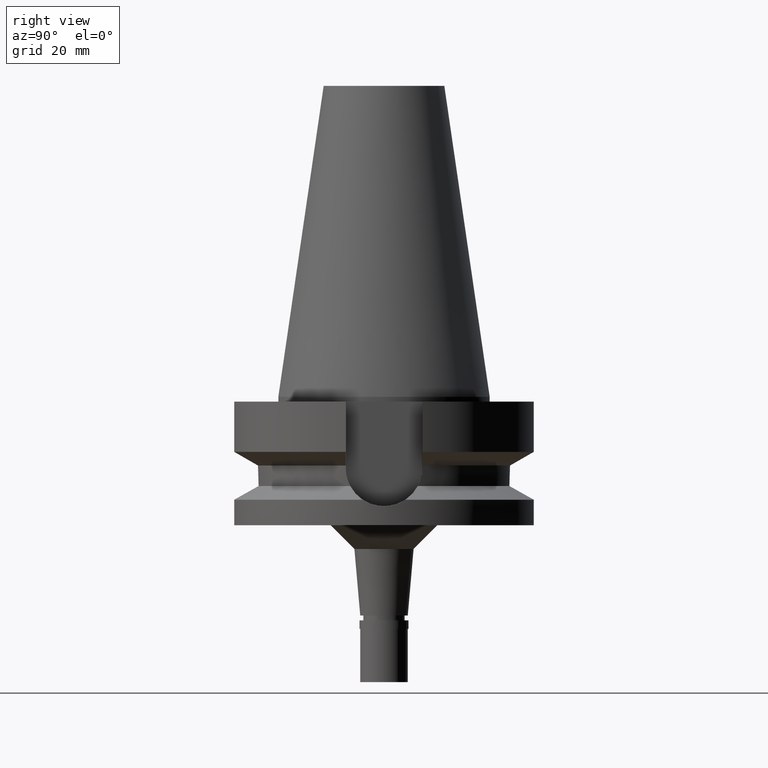
[diagram: clean part render]
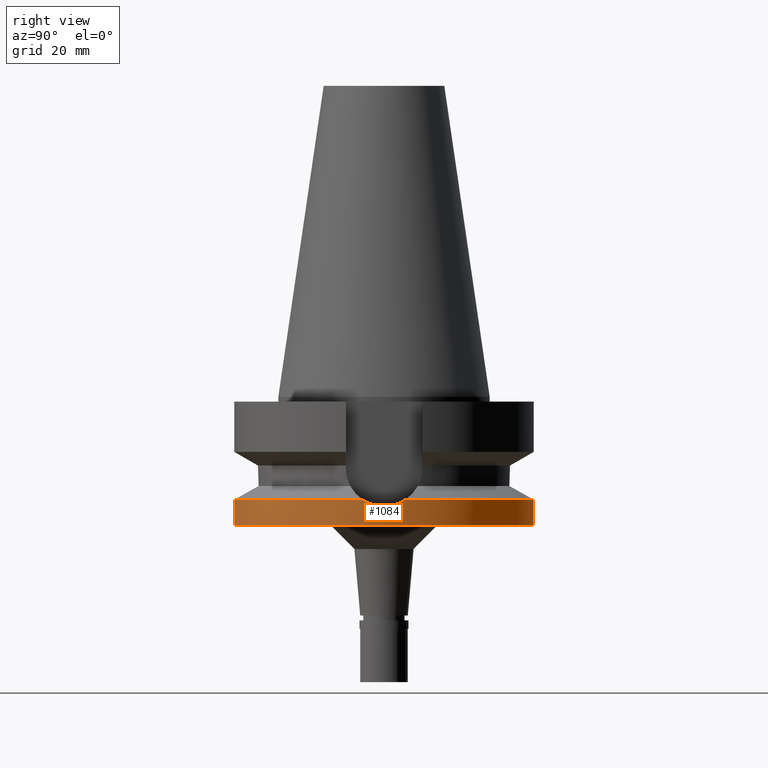
[diagram: same view with one face highlighted and labeled with its STEP entity id]
A machine part, right view. The second image highlights one B-rep face of the part: STEP entity #1084.
In plain terms, the highlighted cylindrical surface (partial cylindrical patch) has radius 31.5 mm, axis along (0, 0, -1).
Its self-contained STEP definition (entity closure, byte-faithful):
#12 = EDGE_CURVE ( 'NONE', #822, #389, #2730, .T. ) ;
#103 = CARTESIAN_POINT ( 'NONE',  ( 31.41700835831544225, 2.283543664145136098, -22.66933216879627722 ) ) ;
#111 = DIRECTION ( 'NONE',  ( 0.0000000000000000000, 0.0000000000000000000, -1.000000000000000000 ) ) ;
#151 = CARTESIAN_POINT ( 'NONE',  ( 0.0000000000000000000, 31.50000000000000000, -21.63449434733000132 ) ) ;
#158 = CARTESIAN_POINT ( 'NONE',  ( 31.44589798759551869, 1.844932280710275485, -22.78637270911190882 ) ) ;
#302 = DIRECTION ( 'NONE',  ( 0.0000000000000000000, -1.000000000000000000, 0.0000000000000000000 ) ) ;
#336 = CARTESIAN_POINT ( 'NONE',  ( 31.40784684085313927, -2.406367806362057937, -22.63197621435943674 ) ) ;
#341 = CARTESIAN_POINT ( 'NONE',  ( 31.28513683615316410, 3.747769718700968866, -22.12956222723138211 ) ) ;
#374 = LINE ( 'NONE', #581, #2637 ) ;
#376 = VERTEX_POINT ( 'NONE', #532 ) ;
#386 = CARTESIAN_POINT ( 'NONE',  ( 31.33673721240795018, -3.204096009920455845, -22.33755624058726852 ) ) ;
#389 = VERTEX_POINT ( 'NONE', #1648 ) ;
#402 = CARTESIAN_POINT ( 'NONE',  ( 31.50000000000000000, 0.0000000000000000000, -23.00000000000000000 ) ) ;
#421 = CARTESIAN_POINT ( 'NONE',  ( 31.50000000000000000, 0.0000000000000000000, -23.00000000000000000 ) ) ;
#489 = VERTEX_POINT ( 'NONE', #2620 ) ;
#532 = CARTESIAN_POINT ( 'NONE',  ( 0.0000000000000000000, -31.50000000000000000, -21.63449434733000132 ) ) ;
#577 = CARTESIAN_POINT ( 'NONE',  ( 31.40207367289821150, -2.480881812443565426, -22.60840945407686320 ) ) ;
#581 = CARTESIAN_POINT ( 'NONE',  ( 0.0000000000000000000, -31.50000000000000000, -21.63449434733000132 ) ) ;
#584 = DIRECTION ( 'NONE',  ( 0.0000000000000000000, 0.0000000000000000000, -1.000000000000000000 ) ) ;
#591 = CARTESIAN_POINT ( 'NONE',  ( 0.0000000000000000000, 0.0000000000000000000, -21.63449434733000132 ) ) ;
#593 = CARTESIAN_POINT ( 'NONE',  ( 31.27812972762344401, -3.746556030059596143, -22.08615384560453876 ) ) ;
#605 = EDGE_CURVE ( 'NONE', #845, #389, #944, .T. ) ;
#626 = CARTESIAN_POINT ( 'NONE',  ( 31.43710641057977639, 1.991379779859996590, -22.75094280094347710 ) ) ;
#631 = EDGE_CURVE ( 'NONE', #845, #684, #979, .T. ) ;
#656 = ORIENTED_EDGE ( 'NONE', *, *, #631, .F. ) ;
#684 = VERTEX_POINT ( 'NONE', #1222 ) ;
#780 = DIRECTION ( 'NONE',  ( 0.0000000000000000000, 1.099151708819000049E-13, -1.000000000000000000 ) ) ;
#789 = CARTESIAN_POINT ( 'NONE',  ( 31.41422043550664256, 2.321593114301752081, -22.65797165830636928 ) ) ;
#795 = AXIS2_PLACEMENT_3D ( 'NONE', #2369, #1941, #302 ) ;
#807 = CARTESIAN_POINT ( 'NONE',  ( 31.41523313603343581, 2.307851765051336823, -22.66209965112095404 ) ) ;
#812 = AXIS2_PLACEMENT_3D ( 'NONE', #591, #111, #2167 ) ;
#818 = CARTESIAN_POINT ( 'NONE',  ( 31.38995345624842059, -2.631089804204598703, -22.55883194695444871 ) ) ;
#822 = VERTEX_POINT ( 'NONE', #421 ) ;
#845 = VERTEX_POINT ( 'NONE', #151 ) ;
#911 = EDGE_CURVE ( 'NONE', #376, #489, #374, .T. ) ;
#944 = CIRCLE ( 'NONE', #812, 31.50000000000000000 ) ;
#979 = LINE ( 'NONE', #1932, #1433 ) ;
#989 = CARTESIAN_POINT ( 'NONE',  ( 0.0000000000000000000, 0.0000000000000000000, -21.63449434733000132 ) ) ;
#1002 = CARTESIAN_POINT ( 'NONE',  ( 31.47114559338427142, 1.356374570635745735, -22.88735630181247771 ) ) ;
#1041 = CARTESIAN_POINT ( 'NONE',  ( 31.41252693101175097, -2.344406219108989387, -22.65106619706778801 ) ) ;
#1046 = ORIENTED_EDGE ( 'NONE', *, *, #911, .T. ) ;
#1071 = CARTESIAN_POINT ( 'NONE',  ( 31.17899877608999759, -4.485536235554000051, -21.63449434733000132 ) ) ;
#1084 = ADVANCED_FACE ( 'NONE', ( #2495 ), #1777, .T. ) ;
#1088 = ORIENTED_EDGE ( 'NONE', *, *, #605, .T. ) ;
#1090 = CARTESIAN_POINT ( 'NONE',  ( 0.0000000000000000000, 2.100085563517999935E-14, 71.48500000000001364 ) ) ;
#1222 = CARTESIAN_POINT ( 'NONE',  ( 0.0000000000000000000, 31.50000000000000000, -27.00000000000000000 ) ) ;
#1240 = CARTESIAN_POINT ( 'NONE',  ( 31.50000000000000000, 0.0000000000000000000, -23.00000000000000000 ) ) ;
#1245 = CARTESIAN_POINT ( 'NONE',  ( 31.17899877608999759, 4.485536235554000051, -21.63449434733000132 ) ) ;
#1273 = DIRECTION ( 'NONE',  ( 0.0000000000000000000, -1.105773104655000034E-13, -1.000000000000000000 ) ) ;
#1348 = ORIENTED_EDGE ( 'NONE', *, *, #2138, .T. ) ;
#1433 = VECTOR ( 'NONE', #780, 1000.000000000000000 ) ;
#1490 = CARTESIAN_POINT ( 'NONE',  ( 31.46212859131685491, 1.551903289695089505, -22.85152805509897789 ) ) ;
#1501 = AXIS2_PLACEMENT_3D ( 'NONE', #989, #584, #1909 ) ;
#1524 = CARTESIAN_POINT ( 'NONE',  ( 31.41025956846885236, -2.374562832950394942, -22.64181864171225556 ) ) ;
#1561 = DIRECTION ( 'NONE',  ( 0.0000000000000000000, -1.000000000000000000, 0.0000000000000000000 ) ) ;
#1648 = CARTESIAN_POINT ( 'NONE',  ( 31.17899877608999759, 4.485536235554000051, -21.63449434733000132 ) ) ;
#1691 = CIRCLE ( 'NONE', #795, 31.50000000000000000 ) ;
#1693 = CARTESIAN_POINT ( 'NONE',  ( 31.36328283750743040, 3.007832629288016868, -22.45025453251525605 ) ) ;
#1725 = ORIENTED_EDGE ( 'NONE', *, *, #2181, .T. ) ;
#1726 = ORIENTED_EDGE ( 'NONE', *, *, #2844, .F. ) ;
#1777 = CYLINDRICAL_SURFACE ( 'NONE', #2361, 31.50000000000000000 ) ;
#1794 = ORIENTED_EDGE ( 'NONE', *, *, #12, .F. ) ;
#1803 = VERTEX_POINT ( 'NONE', #2723 ) ;
#1909 = DIRECTION ( 'NONE',  ( 0.9898094849552905306, -0.1423979757318985240, 0.0000000000000000000 ) ) ;
#1932 = CARTESIAN_POINT ( 'NONE',  ( 0.0000000000000000000, 31.50000000000000000, -21.63449434733000132 ) ) ;
#1940 = CARTESIAN_POINT ( 'NONE',  ( 31.42566608920673588, 2.161912855976699799, -22.70455434713364085 ) ) ;
#1941 = DIRECTION ( 'NONE',  ( 0.0000000000000000000, 0.0000000000000000000, 1.000000000000000000 ) ) ;
#1966 = CARTESIAN_POINT ( 'NONE',  ( 31.47114290507603585, -1.554796663135682211, -22.89008434578796169 ) ) ;
#1995 = CARTESIAN_POINT ( 'NONE',  ( 31.35452407079551662, -3.025350768238268095, -22.41224209228102637 ) ) ;
#2025 = EDGE_LOOP ( 'NONE', ( #1348, #1046, #1725, #656, #1088, #1794, #1726 ) ) ;
#2138 = EDGE_CURVE ( 'NONE', #1803, #376, #2815, .T. ) ;
#2161 = CARTESIAN_POINT ( 'NONE',  ( 31.49278639834608029, 0.7710438198696041301, -22.97268655619793520 ) ) ;
#2167 = DIRECTION ( 'NONE',  ( 0.0000000000000000000, 1.000000000000000000, 0.0000000000000000000 ) ) ;
#2181 = EDGE_CURVE ( 'NONE', #489, #684, #1691, .T. ) ;
#2194 = B_SPLINE_CURVE_WITH_KNOTS ( 'NONE', 3,
 ( #1071, #2448, #593, #386, #1995, #2682, #818, #577, #336, #1524, #2201, #1041, #1966, #2460, #1240 ),
 .UNSPECIFIED., .F., .F.,
 ( 4, 2, 2, 1, 1, 1, 2, 2, 4 ),
 ( 0.0000000000000000000, 0.2499999999999897859, 0.3749999999999846789, 0.4374999999999823475, 0.4687499999999811817, 0.4843749999999809597, 0.4921874999999810707, 0.4999999999999811262, 1.000000000000000000 ),
 .UNSPECIFIED. ) ;
#2201 = CARTESIAN_POINT ( 'NONE',  ( 31.41185438971884381, -2.353388662167538392, -22.64832348433104059 ) ) ;
#2222 = CARTESIAN_POINT ( 'NONE',  ( 31.50000000000000000, 0.3825415465182694374, -23.00000000000000711 ) ) ;
#2361 = AXIS2_PLACEMENT_3D ( 'NONE', #1090, #2541, #1561 ) ;
#2369 = CARTESIAN_POINT ( 'NONE',  ( 0.0000000000000000000, 2.100085563517999935E-14, -27.00000000000000000 ) ) ;
#2448 = CARTESIAN_POINT ( 'NONE',  ( 31.23206219160462283, -4.116692003648343423, -21.88200209908259453 ) ) ;
#2460 = CARTESIAN_POINT ( 'NONE',  ( 31.50000000000000711, -0.7651554268345333032, -23.00000000000001066 ) ) ;
#2495 = FACE_OUTER_BOUND ( 'NONE', #2025, .T. ) ;
#2541 = DIRECTION ( 'NONE',  ( 0.0000000000000000000, 0.0000000000000000000, -1.000000000000000000 ) ) ;
#2620 = CARTESIAN_POINT ( 'NONE',  ( 0.0000000000000000000, -31.50000000000000000, -27.00000000000000000 ) ) ;
#2637 = VECTOR ( 'NONE', #1273, 1000.000000000000000 ) ;
#2682 = CARTESIAN_POINT ( 'NONE',  ( 31.37858090356593266, -2.761758643320569639, -22.51201132468847987 ) ) ;
#2723 = CARTESIAN_POINT ( 'NONE',  ( 31.17899877608999759, -4.485536235554000051, -21.63449434733000132 ) ) ;
#2730 = B_SPLINE_CURVE_WITH_KNOTS ( 'NONE', 3,
 ( #402, #2222, #2161, #1002, #1490, #158, #626, #1940, #2912, #103, #807, #789, #1693, #341, #1245 ),
 .UNSPECIFIED., .F., .F.,
 ( 4, 2, 2, 1, 1, 1, 2, 2, 4 ),
 ( 0.0000000000000000000, 0.2499999999999868994, 0.3749999999999803491, 0.4374999999999771294, 0.4687499999999754086, 0.4843749999999747979, 0.4921874999999747424, 0.4999999999999747979, 1.000000000000000000 ),
 .UNSPECIFIED. ) ;
#2815 = CIRCLE ( 'NONE', #1501, 31.50000000000001421 ) ;
#2844 = EDGE_CURVE ( 'NONE', #1803, #822, #2194, .T. ) ;
#2912 = CARTESIAN_POINT ( 'NONE',  ( 31.41965005813989009, 2.247072451142189564, -22.68008986001243343 ) ) ;